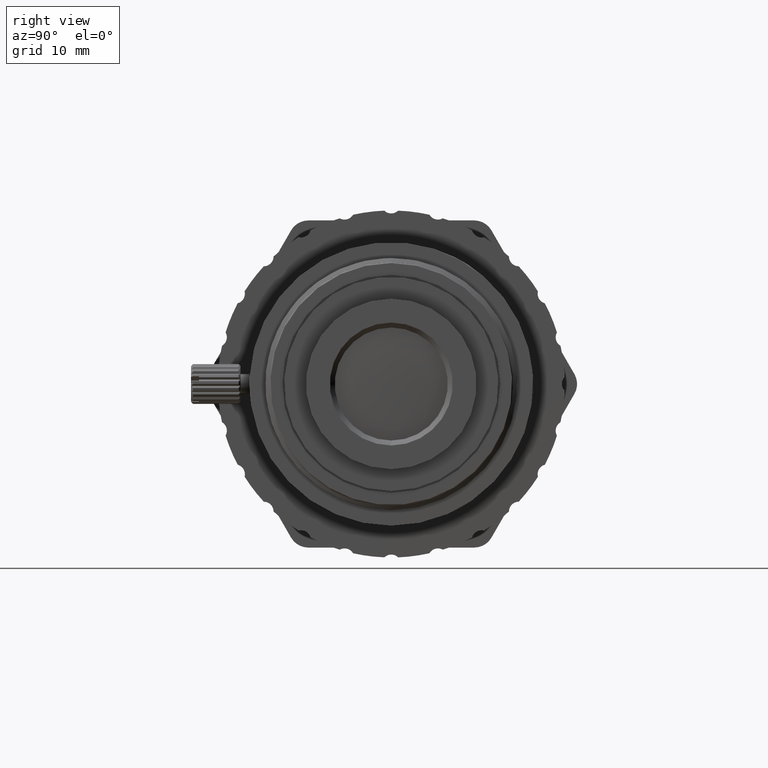
[diagram: clean part render]
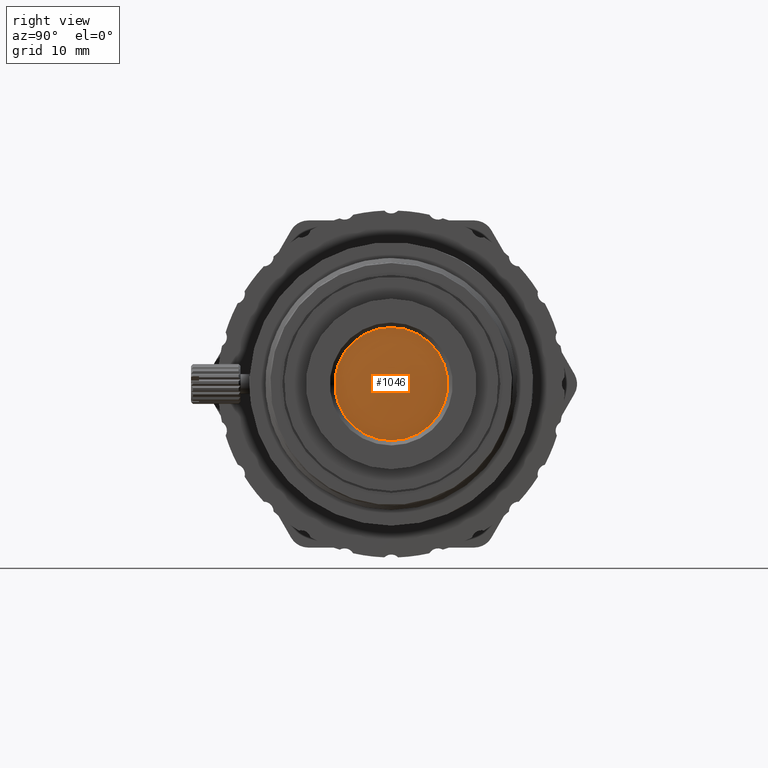
[diagram: same view with one face highlighted and labeled with its STEP entity id]
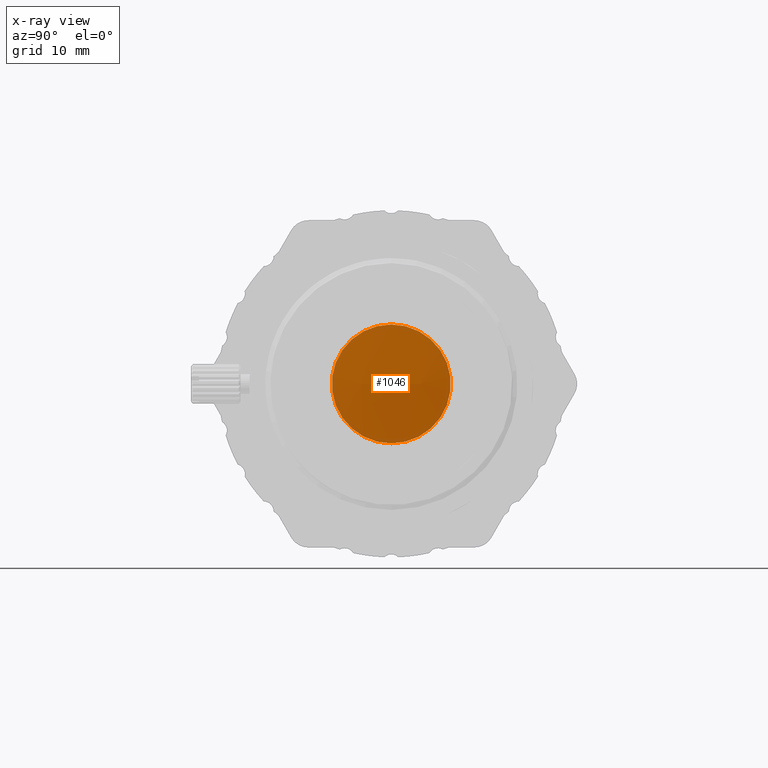
[diagram: x-ray of the same camera — body ghosted, the highlighted face saturated]
A machine part, right view. The second image highlights one B-rep face of the part: STEP entity #1046.
The next image is the same camera in x-ray: the body ghosted, the highlighted face saturated — about 0% of this face is hidden behind the body in this view.
In plain terms, the highlighted spherical surface has radius 67.6336 mm.
Its self-contained STEP definition (entity closure, byte-faithful):
#350 = CARTESIAN_POINT ( 'NONE',  ( 10473.87389608839658, -3043.346037136861469, 5.999999999971804776 ) ) ;
#500 = DIRECTION ( 'NONE',  ( -1.000000000000000000, 0.000000000000000000, 0.000000000000000000 ) ) ;
#1046 = ADVANCED_FACE ( 'NONE', ( #11162 ), #1184, .T. ) ;
#1184 = SPHERICAL_SURFACE ( 'NONE', #14353, 67.63357800020267518 ) ;
#3282 = ORIENTED_EDGE ( 'NONE', *, *, #10373, .F. ) ;
#3551 = AXIS2_PLACEMENT_3D ( 'NONE', #5076, #500, #7318 ) ;
#5076 = CARTESIAN_POINT ( 'NONE',  ( 10473.87389608839658, -3043.346037136861469, 0.000000000000000000 ) ) ;
#5606 = DIRECTION ( 'NONE',  ( 0.08977503894519490990, -2.197213185949555871E-13, 0.9959620687467914957 ) ) ;
#7308 = VERTEX_POINT ( 'NONE', #350 ) ;
#7318 = DIRECTION ( 'NONE',  ( 0.000000000000000000, 0.000000000000000000, 1.000000000000000000 ) ) ;
#7924 = CARTESIAN_POINT ( 'NONE',  ( 10406.50698378633570, -3043.346037136861014, 3.534325609955146774E-11 ) ) ;
#10373 = EDGE_CURVE ( 'NONE', #7308, #7308, #12642, .T. ) ;
#11162 = FACE_OUTER_BOUND ( 'NONE', #12312, .T. ) ;
#12312 = EDGE_LOOP ( 'NONE', ( #3282 ) ) ;
#12642 = CIRCLE ( 'NONE', #3551, 5.999999999971804776 ) ;
#13558 = DIRECTION ( 'NONE',  ( 0.9959620687467914957, -2.436025147950623781E-12, -0.08977503894519490990 ) ) ;
#14353 = AXIS2_PLACEMENT_3D ( 'NONE', #7924, #5606, #13558 ) ;